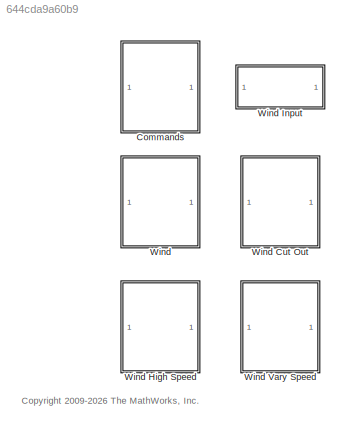
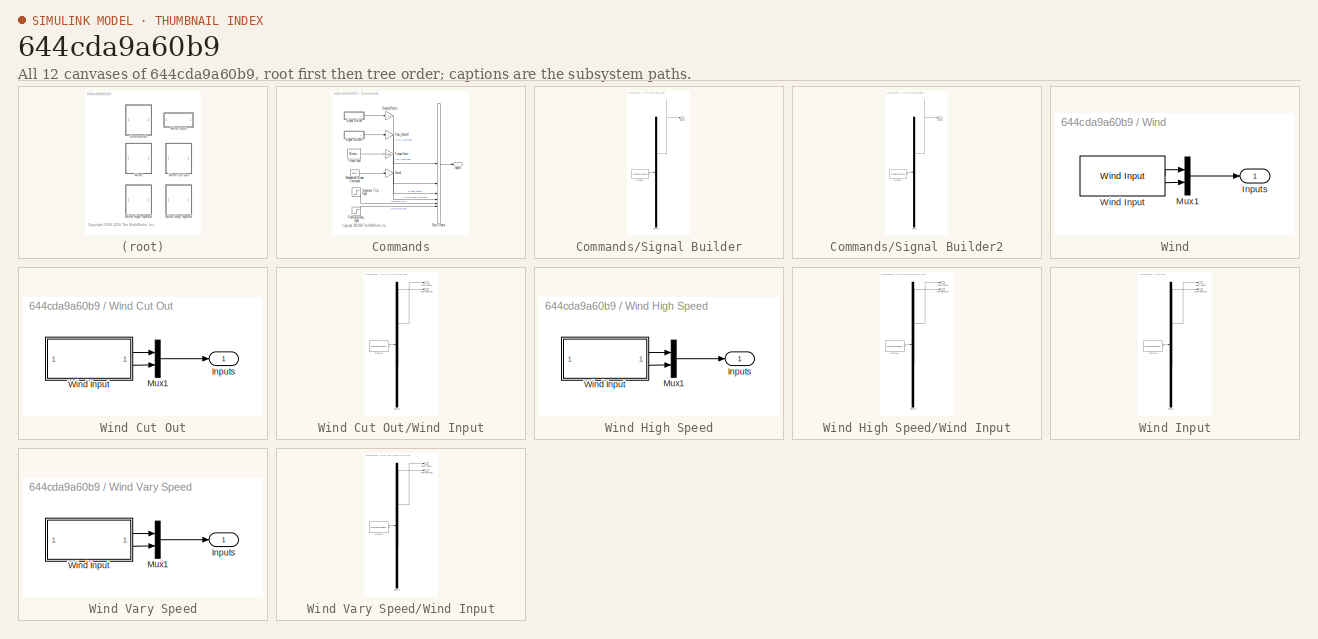
[diagram: thumbnail index - all 12 canvases of the model, root first then tree order]
MODEL slx_644cda9a60b9
KIND library
CONFIG EnableMultiTasking = on
CONFIG SolverName = ode45
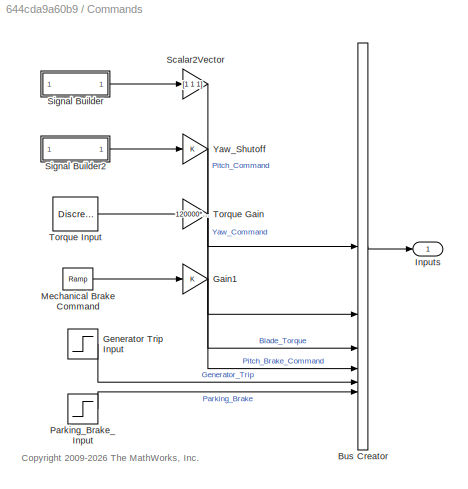
BLOCK [SubSystem] Commands
BLOCK [BusCreator] Commands/Bus Creator
  DisplayOption = bar
  InheritFromInputs = on
  Inputs = 6
BLOCK [Gain] Commands/Gain1
BLOCK [Step] Commands/Generator Trip Input
  InitialValue = 1
  SampleTime = 0
  Time = 90
BLOCK [Outport] Commands/Inputs
  VectorParamsAs1DForOutWhenUnconnected = off
BLOCK [Reference] Commands/Mechanical Brake Command  REF=simulink/Sources/Ramp
  SourceBlock = simulink/Sources/Ramp
  SourceType = Ramp
BLOCK [Step] Commands/Parking_Brake_Input
  FinalValue = 0
  InitialValue = 1
  SampleTime = 0
  Time = 5
BLOCK [Gain] Commands/Scalar2Vector
  Gain = [1 1 1]
BLOCK [SubSystem] Commands/Signal Builder
  ClipboardFcn = sigbuilder_block('clipboard');
  CloseFcn = sigbuilder_block('close');
  ContinueFcn = sigbuilder_block('continue')
  CopyFcn = sigbuilder_block('copy');
  DeleteFcn = sigbuilder_block('delete');
  LoadFcn = sigbuilder_block('load');
  MaskHideContents = on
  ModelCloseFcn = sigbuilder_block('modelClose');
  NameChangeFcn = sigbuilder_block('namechange');
  OpenFcn = sigbuilder_block('open',[214.5 254.25 550.5 399.75 ]);
  PauseFcn = sigbuilder_block('pause')
  PreSaveFcn = sigbuilder_block('preSave');
  StartFcn = sigbuilder_block('start');
  StopFcn = sigbuilder_block('stop');
  Tag = STV Subsys
BLOCK [Demux] Commands/Signal Builder/Demux
  DisplayOption = none
  Outputs = 1
  Tag = STV Demux
BLOCK [FromWorkspace] Commands/Signal Builder/FromWs
  Tag = STV FromWs
  VariableName = tuvar
BLOCK [Outport] Commands/Signal Builder/Signal 1
  Tag = STV Outport
  VectorParamsAs1DForOutWhenUnconnected = off
BLOCK [SubSystem] Commands/Signal Builder2
  ClipboardFcn = sigbuilder_block('clipboard');
  CloseFcn = sigbuilder_block('close');
  ContinueFcn = sigbuilder_block('continue')
  CopyFcn = sigbuilder_block('copy');
  DeleteFcn = sigbuilder_block('delete');
  LoadFcn = sigbuilder_block('load');
  MaskHideContents = on
  ModelCloseFcn = sigbuilder_block('modelClose');
  NameChangeFcn = sigbuilder_block('namechange');
  OpenFcn = sigbuilder_block('open',[28.5 161.25 550.5 489 ]);
  PauseFcn = sigbuilder_block('pause')
  PreSaveFcn = sigbuilder_block('preSave');
  StartFcn = sigbuilder_block('start');
  StopFcn = sigbuilder_block('stop');
  Tag = STV Subsys
BLOCK [Demux] Commands/Signal Builder2/Demux
  DisplayOption = none
  Outputs = 1
  Tag = STV Demux
BLOCK [FromWorkspace] Commands/Signal Builder2/FromWs
  Tag = STV FromWs
  VariableName = tuvar
BLOCK [Outport] Commands/Signal Builder2/Signal 1
  Tag = STV Outport
  VectorParamsAs1DForOutWhenUnconnected = off
BLOCK [Gain] Commands/Torque Gain
  Gain = 120000*1.23
BLOCK [DiscretePulseGenerator] Commands/Torque Input
  Amplitude = 10
  Period = 100
  PulseType = Time based
  PulseWidth = 10
BLOCK [Gain] Commands/Yaw_Shutoff
BLOCK [SubSystem] Wind
BLOCK [SubSystem] Wind Cut Out
BLOCK [Outport] Wind Cut Out/Inputs
  VectorParamsAs1DForOutWhenUnconnected = off
BLOCK [Mux] Wind Cut Out/Mux1
  DisplayOption = bar
  Inputs = 2
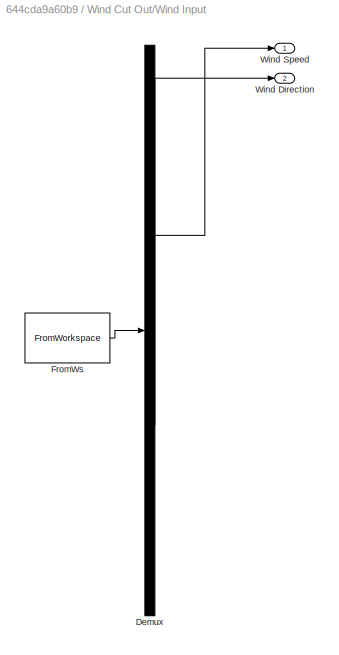
BLOCK [SubSystem] Wind Cut Out/Wind Input
  AncestorBlock = Turbine_Input_Lib/Wind Input
  ClipboardFcn = sigbuilder_block('clipboard');
  CloseFcn = sigbuilder_block('close');
  ContinueFcn = sigbuilder_block('continue')
  CopyFcn = sigbuilder_block('copy');
  DeleteFcn = sigbuilder_block('delete');
  LibrarySourceBlock = Turbine_Input_Lib/Wind Input
  LoadFcn = sigbuilder_block('load');
  MaskHideContents = on
  ModelCloseFcn = sigbuilder_block('modelClose');
  NameChangeFcn = sigbuilder_block('namechange');
  OpenFcn = sigbuilder_block('open',[-3.6 225.6 762 360.6 ]);
  PauseFcn = sigbuilder_block('pause')
  PreSaveFcn = sigbuilder_block('preSave');
  StartFcn = sigbuilder_block('start');
  StopFcn = sigbuilder_block('stop');
  Tag = STV Subsys
BLOCK [Demux] Wind Cut Out/Wind Input/Demux
  DisplayOption = none
  Outputs = 2
  Tag = STV Demux
BLOCK [FromWorkspace] Wind Cut Out/Wind Input/FromWs
  Tag = STV FromWs
  VariableName = tuvar
BLOCK [Outport] Wind Cut Out/Wind Input/Wind Direction
  Port = 2
  Tag = STV Outport
  VectorParamsAs1DForOutWhenUnconnected = off
BLOCK [Outport] Wind Cut Out/Wind Input/Wind Speed
  Tag = STV Outport
  VectorParamsAs1DForOutWhenUnconnected = off
BLOCK [SubSystem] Wind High Speed
BLOCK [Outport] Wind High Speed/Inputs
  VectorParamsAs1DForOutWhenUnconnected = off
BLOCK [Mux] Wind High Speed/Mux1
  DisplayOption = bar
  Inputs = 2
BLOCK [SubSystem] Wind High Speed/Wind Input
  AncestorBlock = Turbine_Input_Lib/Wind Input
  ClipboardFcn = sigbuilder_block('clipboard');
  CloseFcn = sigbuilder_block('close');
  ContinueFcn = sigbuilder_block('continue')
  CopyFcn = sigbuilder_block('copy');
  DeleteFcn = sigbuilder_block('delete');
  LibrarySourceBlock = Turbine_Input_Lib/Wind Input
  LoadFcn = sigbuilder_block('load');
  MaskHideContents = on
  ModelCloseFcn = sigbuilder_block('modelClose');
  NameChangeFcn = sigbuilder_block('namechange');
  OpenFcn = sigbuilder_block('open',[-3.6 225.6 762 360.6 ]);
  PauseFcn = sigbuilder_block('pause')
  PreSaveFcn = sigbuilder_block('preSave');
  StartFcn = sigbuilder_block('start');
  StopFcn = sigbuilder_block('stop');
  Tag = STV Subsys
BLOCK [Demux] Wind High Speed/Wind Input/Demux
  DisplayOption = none
  Outputs = 2
  Tag = STV Demux
BLOCK [FromWorkspace] Wind High Speed/Wind Input/FromWs
  Tag = STV FromWs
  VariableName = tuvar
BLOCK [Outport] Wind High Speed/Wind Input/Wind Direction
  Port = 2
  Tag = STV Outport
  VectorParamsAs1DForOutWhenUnconnected = off
BLOCK [Outport] Wind High Speed/Wind Input/Wind Speed
  Tag = STV Outport
  VectorParamsAs1DForOutWhenUnconnected = off
BLOCK [SubSystem] Wind Input
  ClipboardFcn = sigbuilder_block('clipboard');
  CloseFcn = sigbuilder_block('close');
  ContinueFcn = sigbuilder_block('continue')
  CopyFcn = sigbuilder_block('copy');
  DeleteFcn = sigbuilder_block('delete');
  LoadFcn = sigbuilder_block('load');
  MaskHideContents = on
  ModelCloseFcn = sigbuilder_block('modelClose');
  NameChangeFcn = sigbuilder_block('namechange');
  OpenFcn = sigbuilder_block('open',[-3.6 225.6 762 360.6 ]);
  PauseFcn = sigbuilder_block('pause')
  PreSaveFcn = sigbuilder_block('preSave');
  StartFcn = sigbuilder_block('start');
  StopFcn = sigbuilder_block('stop');
  Tag = STV Subsys
BLOCK [Demux] Wind Input/Demux
  DisplayOption = none
  Outputs = 2
  Tag = STV Demux
BLOCK [FromWorkspace] Wind Input/FromWs
  Tag = STV FromWs
  VariableName = tuvar
BLOCK [Outport] Wind Input/Wind Direction
  Port = 2
  Tag = STV Outport
  VectorParamsAs1DForOutWhenUnconnected = off
BLOCK [Outport] Wind Input/Wind Speed
  Tag = STV Outport
  VectorParamsAs1DForOutWhenUnconnected = off
BLOCK [SubSystem] Wind Vary Speed
BLOCK [Outport] Wind Vary Speed/Inputs
  VectorParamsAs1DForOutWhenUnconnected = off
BLOCK [Mux] Wind Vary Speed/Mux1
  DisplayOption = bar
  Inputs = 2
BLOCK [SubSystem] Wind Vary Speed/Wind Input
  AncestorBlock = Turbine_Input_Lib/Wind Input
  ClipboardFcn = sigbuilder_block('clipboard');
  CloseFcn = sigbuilder_block('close');
  ContinueFcn = sigbuilder_block('continue')
  CopyFcn = sigbuilder_block('copy');
  DeleteFcn = sigbuilder_block('delete');
  LibrarySourceBlock = Turbine_Input_Lib/Wind Input
  LoadFcn = sigbuilder_block('load');
  MaskHideContents = on
  ModelCloseFcn = sigbuilder_block('modelClose');
  NameChangeFcn = sigbuilder_block('namechange');
  OpenFcn = sigbuilder_block('open',[-3.6 225.6 762 360.6 ]);
  PauseFcn = sigbuilder_block('pause')
  PreSaveFcn = sigbuilder_block('preSave');
  StartFcn = sigbuilder_block('start');
  StopFcn = sigbuilder_block('stop');
  Tag = STV Subsys
BLOCK [Demux] Wind Vary Speed/Wind Input/Demux
  DisplayOption = none
  Outputs = 2
  Tag = STV Demux
BLOCK [FromWorkspace] Wind Vary Speed/Wind Input/FromWs
  Tag = STV FromWs
  VariableName = tuvar
BLOCK [Outport] Wind Vary Speed/Wind Input/Wind Direction
  Port = 2
  Tag = STV Outport
  VectorParamsAs1DForOutWhenUnconnected = off
BLOCK [Outport] Wind Vary Speed/Wind Input/Wind Speed
  Tag = STV Outport
  VectorParamsAs1DForOutWhenUnconnected = off
BLOCK [Outport] Wind/Inputs
  VectorParamsAs1DForOutWhenUnconnected = off
BLOCK [Mux] Wind/Mux1
  DisplayOption = bar
  Inputs = 2
BLOCK [Reference] Wind/Wind Input  REF=$bdroot/Wind Input
  SourceBlock = $bdroot/Wind Input
  SourceType = Sigbuilder block
  Tag = STV Subsys
ANNOTATION (root): <copyright redacted>
ANNOTATION Commands: <copyright redacted>
LINE Commands/Bus Creator:1 -> Commands/Inputs:1
LINE Commands/Gain1:1 -> Commands/Bus Creator:4
LINE Commands/Generator Trip Input:1 -> Commands/Bus Creator:5
LINE Commands/Mechanical Brake Command:1 -> Commands/Gain1:1
LINE Commands/Parking_Brake_Input:1 -> Commands/Bus Creator:6
LINE Commands/Scalar2Vector:1 -> Commands/Bus Creator:1
LINE Commands/Signal Builder2:1 -> Commands/Yaw_Shutoff:1
LINE Commands/Signal Builder:1 -> Commands/Scalar2Vector:1
LINE Commands/Torque Gain:1 -> Commands/Bus Creator:3
LINE Commands/Torque Input:1 -> Commands/Torque Gain:1
LINE Commands/Yaw_Shutoff:1 -> Commands/Bus Creator:2
LINE Wind Cut Out/Mux1:1 -> Wind Cut Out/Inputs:1
LINE Wind Cut Out/Wind Input:1 -> Wind Cut Out/Mux1:1
LINE Wind Cut Out/Wind Input:2 -> Wind Cut Out/Mux1:2
LINE Wind High Speed/Mux1:1 -> Wind High Speed/Inputs:1
LINE Wind High Speed/Wind Input:1 -> Wind High Speed/Mux1:1
LINE Wind High Speed/Wind Input:2 -> Wind High Speed/Mux1:2
LINE Wind Vary Speed/Mux1:1 -> Wind Vary Speed/Inputs:1
LINE Wind Vary Speed/Wind Input:1 -> Wind Vary Speed/Mux1:1
LINE Wind Vary Speed/Wind Input:2 -> Wind Vary Speed/Mux1:2
LINE Wind/Mux1:1 -> Wind/Inputs:1
LINE Wind/Wind Input:1 -> Wind/Mux1:1
LINE Wind/Wind Input:2 -> Wind/Mux1:2
